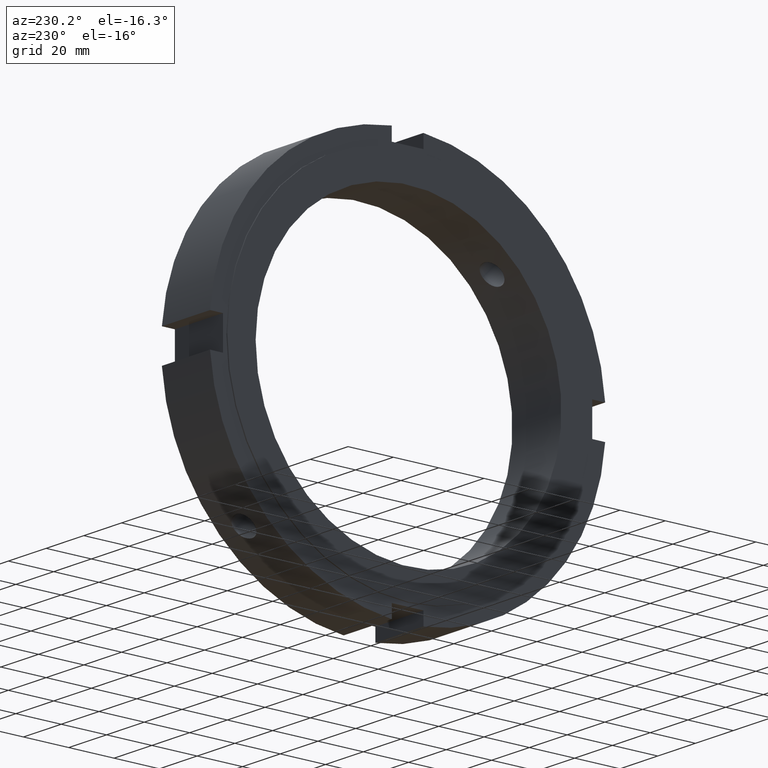
[diagram: clean part render]
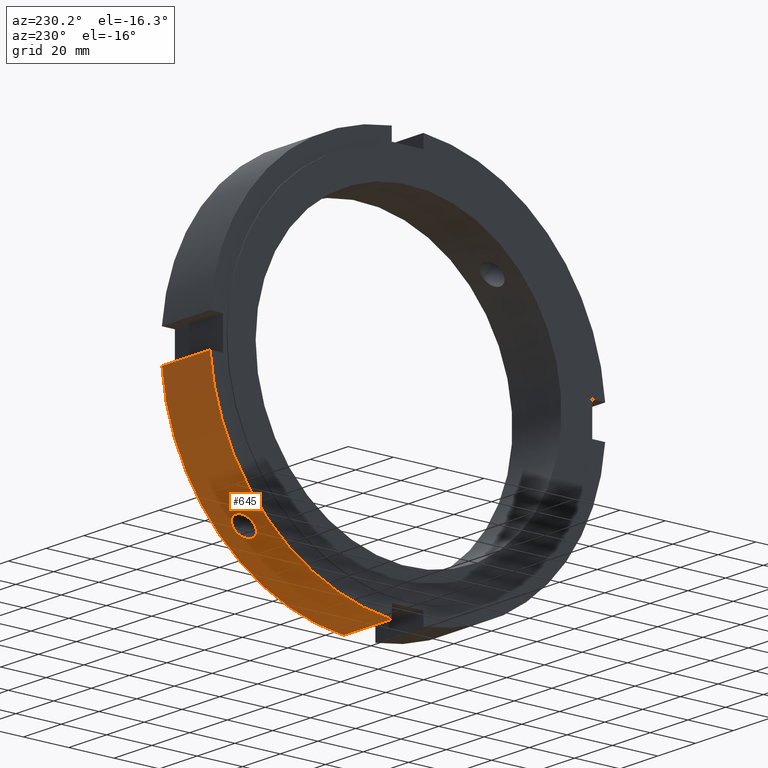
[diagram: same view with one face highlighted and labeled with its STEP entity id]
A machine part, auxiliary view. The second image highlights one B-rep face of the part: STEP entity #645.
In plain terms, the highlighted cylindrical surface (partial cylindrical patch) has radius 87.5 mm, axis along (1, 0, 0).
Its self-contained STEP definition (entity closure, byte-faithful):
#161=CARTESIAN_POINT('',(12.999999999999982,58.195578503057362,-65.341599633728634));
#162=VERTEX_POINT('',#161);
#163=CARTESIAN_POINT('',(12.999999999999980,58.195578503057362,-65.341599633728634));
#164=CARTESIAN_POINT('',(13.634617524532445,58.195578503057362,-65.341599633728634));
#165=CARTESIAN_POINT('',(14.311438849501902,58.290673530570054,-65.257291249758339));
#166=CARTESIAN_POINT('',(15.556351832647906,58.674826924133924,-64.912104936060402));
#167=CARTESIAN_POINT('',(16.124455469159766,58.963598898543879,-64.650951599027323));
#168=CARTESIAN_POINT('',(17.021565492768399,59.623876514197711,-64.042524052352974));
#169=CARTESIAN_POINT('',(17.410421537571132,60.039385767538846,-63.654613330461665));
#170=CARTESIAN_POINT('',(17.926142696514230,60.939132901855729,-62.793787294294965));
#171=CARTESIAN_POINT('',(18.052999999999983,61.423101167579674,-62.320585540066133));
#172=CARTESIAN_POINT('',(18.052999999999983,62.320585540066133,-61.423101167579688));
#173=CARTESIAN_POINT('',(17.926142696514219,62.793787294294958,-60.939132901855743));
#174=CARTESIAN_POINT('',(17.410421537571125,63.654613330461643,-60.039385767538860));
#175=CARTESIAN_POINT('',(17.021565492768399,64.042524052352960,-59.623876514197732));
#176=CARTESIAN_POINT('',(16.124455469159763,64.650951599027309,-58.963598898543886));
#177=CARTESIAN_POINT('',(15.556351832647895,64.912104936060388,-58.674826924133939));
#178=CARTESIAN_POINT('',(14.311438849501897,65.257291249758339,-58.290673530570068));
#179=CARTESIAN_POINT('',(13.634617524532446,65.341599633728606,-58.195578503057405));
#180=CARTESIAN_POINT('',(12.365382475467520,65.341599633728606,-58.195578503057405));
#181=CARTESIAN_POINT('',(11.688561150498067,65.257291249758339,-58.290673530570068));
#182=CARTESIAN_POINT('',(10.443648167352066,64.912104936060388,-58.674826924133939));
#183=CARTESIAN_POINT('',(9.875544530840203,64.650951599027309,-58.963598898543886));
#184=CARTESIAN_POINT('',(8.978434507231569,64.042524052352960,-59.623876514197732));
#185=CARTESIAN_POINT('',(8.589578462428841,63.654613330461643,-60.039385767538860));
#186=CARTESIAN_POINT('',(8.073857303485744,62.793787294294951,-60.939132901855743));
#187=CARTESIAN_POINT('',(7.946999999999985,62.320585540066133,-61.423101167579688));
#188=CARTESIAN_POINT('',(7.946999999999981,61.423101167579674,-62.320585540066133));
#189=CARTESIAN_POINT('',(8.073857303485742,60.939132901855729,-62.793787294294958));
#190=CARTESIAN_POINT('',(8.589578462428840,60.039385767538846,-63.654613330461665));
#191=CARTESIAN_POINT('',(8.978434507231563,59.623876514197711,-64.042524052352974));
#192=CARTESIAN_POINT('',(9.875544530840198,58.963598898543879,-64.650951599027323));
#193=CARTESIAN_POINT('',(10.443648167352059,58.674826924133924,-64.912104936060402));
#194=CARTESIAN_POINT('',(11.688561150498062,58.290673530570054,-65.257291249758339));
#195=CARTESIAN_POINT('',(12.365382475467520,58.195578503057362,-65.341599633728634));
#196=CARTESIAN_POINT('',(12.999999999999982,58.195578503057362,-65.341599633728634));
#197=B_SPLINE_CURVE_WITH_KNOTS('',3,(#163,#164,#165,#166,#167,#168,#169,#170,#171,#172,#173,#174,#175,#176,#177,#178,#179,#180,#181,#182,#183,#184,#185,#186,#187,#188,#189,#190,#191,#192,#193,#194,#195,#196),.UNSPECIFIED.,.T.,.U.,(4,2,2,2,2,2,2,2,2,2,2,2,2,2,2,2,4),(0.0,0.190385257359739,0.380770514719478,0.571155700457715,0.761540886195952,0.951926071934189,1.142311257672426,1.332696515032165,1.523081772391904,1.713467029751643,1.903852287111382,2.094237472849619,2.284622658587856,2.475007844326093,2.665393030064330,2.855778287424069,3.046163544783808),.UNSPECIFIED.);
#198=EDGE_CURVE('',#162,#162,#197,.T.);
#289=CARTESIAN_POINT('',(0.499999999999976,6.999999999999980,-87.219550560639789));
#290=VERTEX_POINT('',#289);
#299=CARTESIAN_POINT('',(25.999999999999979,6.999999999999980,-87.219550560639789));
#300=VERTEX_POINT('',#299);
#301=CARTESIAN_POINT('',(25.999999999999979,6.999999999999980,-87.219550560639789));
#302=DIRECTION('',(-1.0,0.0,0.0));
#303=VECTOR('',#302,25.500000000000004);
#304=LINE('',#301,#303);
#305=EDGE_CURVE('',#300,#290,#304,.T.);
#610=CARTESIAN_POINT('',(13.249999999999977,0.0,0.0));
#611=DIRECTION('',(1.0,0.0,0.0));
#612=DIRECTION('',(0.0,1.0,0.0));
#613=AXIS2_PLACEMENT_3D('',#610,#611,#612);
#614=CYLINDRICAL_SURFACE('',#613,87.500000000000000);
#615=ORIENTED_EDGE('',*,*,#305,.T.);
#616=CARTESIAN_POINT('',(0.499999999999976,87.219550560639789,-6.999999999999996));
#617=VERTEX_POINT('',#616);
#618=CARTESIAN_POINT('',(0.499999999999976,0.0,0.0));
#619=DIRECTION('',(1.0,0.0,0.0));
#620=DIRECTION('',(0.0,1.0,0.0));
#621=AXIS2_PLACEMENT_3D('',#618,#619,#620);
#622=CIRCLE('',#621,87.500000000000000);
#623=EDGE_CURVE('',#290,#617,#622,.T.);
#624=ORIENTED_EDGE('',*,*,#623,.T.);
#625=CARTESIAN_POINT('',(25.999999999999979,87.219550560639789,-6.999999999999996));
#626=VERTEX_POINT('',#625);
#627=CARTESIAN_POINT('',(0.499999999999975,87.219550560639789,-6.999999999999996));
#628=DIRECTION('',(1.0,0.0,0.0));
#629=VECTOR('',#628,25.500000000000004);
#630=LINE('',#627,#629);
#631=EDGE_CURVE('',#617,#626,#630,.T.);
#632=ORIENTED_EDGE('',*,*,#631,.T.);
#633=CARTESIAN_POINT('',(25.999999999999979,0.0,0.0));
#634=DIRECTION('',(1.0,0.0,0.0));
#635=DIRECTION('',(0.0,1.0,0.0));
#636=AXIS2_PLACEMENT_3D('',#633,#634,#635);
#637=CIRCLE('',#636,87.500000000000000);
#638=EDGE_CURVE('',#300,#626,#637,.T.);
#639=ORIENTED_EDGE('',*,*,#638,.F.);
#640=EDGE_LOOP('',(#615,#624,#632,#639));
#641=FACE_OUTER_BOUND('',#640,.T.);
#642=ORIENTED_EDGE('',*,*,#198,.T.);
#643=EDGE_LOOP('',(#642));
#644=FACE_BOUND('',#643,.T.);
#645=ADVANCED_FACE('',(#641,#644),#614,.T.);